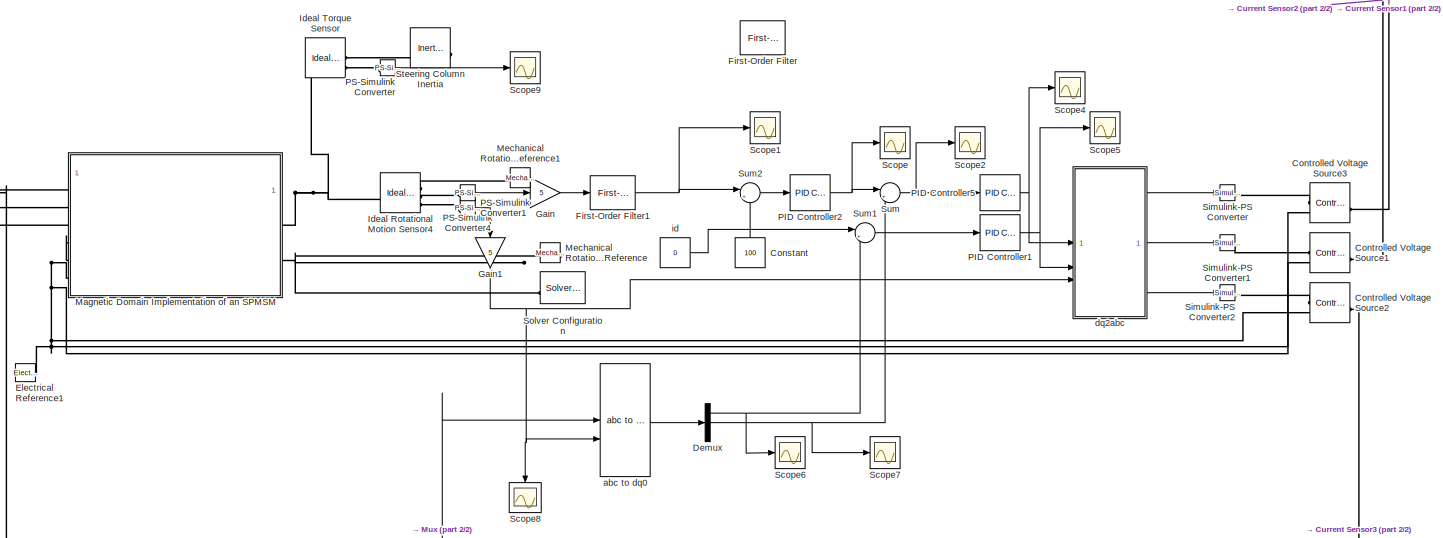
[diagram: root canvas - part 1/2, full width, middle band]
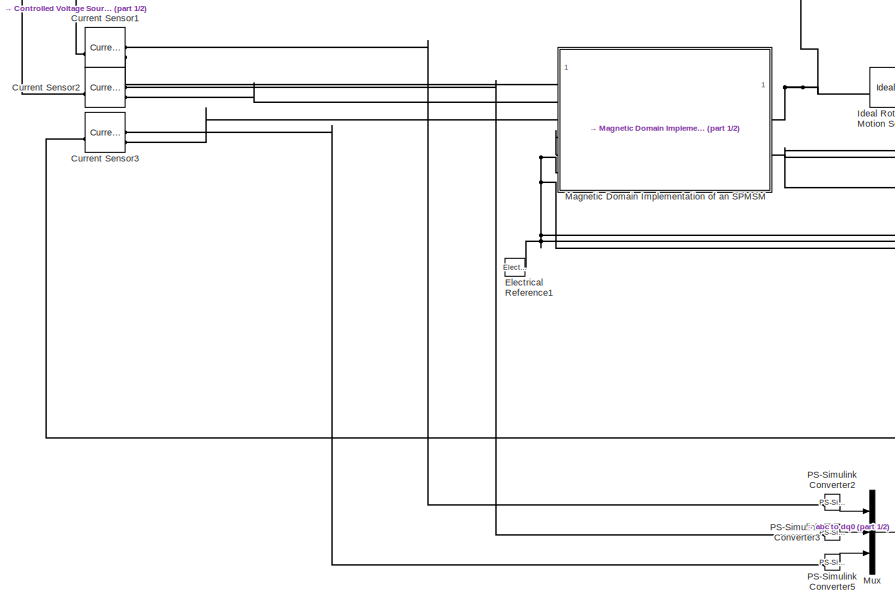
[diagram: root canvas - part 2/2, left side, full height]
MODEL slx_11b85bf1b110
KIND model
CONFIG AbsTol = auto
CONFIG EnableMultiTasking = off
CONFIG FixedStep = auto
CONFIG MaxStep = auto
CONFIG MinStep = auto
CONFIG RelTol = 1e-3
CONFIG SampleTimeConstraint = Unconstrained
CONFIG SolverName = VariableStepAuto
CONFIG StartTime = 0.0
CONFIG StopTime = 20
BLOCK [Constant] Constant
  NameLocation = right
  Value = 100
BLOCK [Reference] Controlled Voltage Source1  REF=fl_lib/Electrical/Electrical Sources/Controlled Voltage
Source
  SourceBlock = fl_lib/Electrical/Electrical Sources/Controlled Voltage\nSource
  SourceType = Controlled Voltage\nSource
BLOCK [Reference] Controlled Voltage Source2  REF=fl_lib/Electrical/Electrical Sources/Controlled Voltage
Source
  SourceBlock = fl_lib/Electrical/Electrical Sources/Controlled Voltage\nSource
  SourceType = Controlled Voltage\nSource
BLOCK [Reference] Controlled Voltage Source3  REF=fl_lib/Electrical/Electrical Sources/Controlled Voltage
Source
  SourceBlock = fl_lib/Electrical/Electrical Sources/Controlled Voltage\nSource
  SourceType = Controlled Voltage\nSource
BLOCK [Reference] Current Sensor1  REF=fl_lib/Electrical/Electrical Sensors/Current Sensor
  SourceBlock = fl_lib/Electrical/Electrical Sensors/Current Sensor
  SourceType = Current Sensor
BLOCK [Reference] Current Sensor2  REF=fl_lib/Electrical/Electrical Sensors/Current Sensor
  SourceBlock = fl_lib/Electrical/Electrical Sensors/Current Sensor
  SourceType = Current Sensor
BLOCK [Reference] Current Sensor3  REF=fl_lib/Electrical/Electrical Sensors/Current Sensor
  SourceBlock = fl_lib/Electrical/Electrical Sensors/Current Sensor
  SourceType = Current Sensor
BLOCK [Demux] Demux
  Outputs = 3
BLOCK [Reference] Electrical Reference1  REF=fl_lib/Electrical/Electrical Elements/Electrical Reference
  SourceBlock = fl_lib/Electrical/Electrical Elements/Electrical Reference
  SourceType = Electrical Reference
BLOCK [Reference] First-Order Filter  REF=spsFirstOrderFilterLib/First-Order
Filter
  LibrarySourceBlock = sps_lib/Control/Filters/First-Order\nFilter
  SourceBlock = spsFirstOrderFilterLib/First-Order\nFilter
  SourceType = First-Order Filter
BLOCK [Reference] First-Order Filter1  REF=spsFirstOrderFilterLib/First-Order
Filter
  LibrarySourceBlock = sps_lib/Control/Filters/First-Order\nFilter
  SourceBlock = spsFirstOrderFilterLib/First-Order\nFilter
  SourceType = First-Order Filter
BLOCK [Gain] Gain
  Gain = 5
BLOCK [Gain] Gain1
  Gain = 5
  NameLocation = left
BLOCK [Reference] Ideal Rotational Motion Sensor4  REF=fl_lib/Mechanical/Mechanical Sensors/Ideal Rotational
Motion Sensor
  SourceBlock = fl_lib/Mechanical/Mechanical Sensors/Ideal Rotational\nMotion Sensor
  SourceType = Ideal Rotational\nMotion Sensor
BLOCK [Reference] Ideal Torque Sensor  REF=fl_lib/Mechanical/Mechanical Sensors/Ideal Torque Sensor
  SourceBlock = fl_lib/Mechanical/Mechanical Sensors/Ideal Torque Sensor
  SourceType = Ideal Torque Sensor
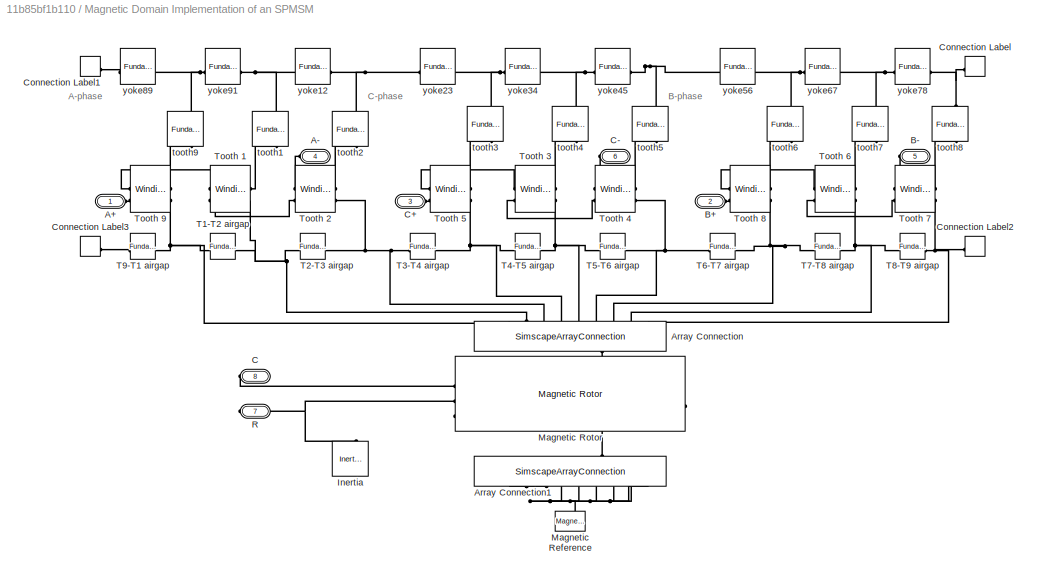
BLOCK [SubSystem] Magnetic Domain Implementation of an SPMSM
BLOCK [PMIOPort] Magnetic Domain Implementation of an SPMSM/A+
  Side = Left
BLOCK [PMIOPort] Magnetic Domain Implementation of an SPMSM/A-
  NameLocation = top
  Port = 4
  Side = Left
BLOCK [SimscapeArrayConnection] Magnetic Domain Implementation of an SPMSM/Array Connection
  Domain = foundation.magnetic.magnetic
  NameLocation = left
  NumScalarElements = 9
BLOCK [SimscapeArrayConnection] Magnetic Domain Implementation of an SPMSM/Array Connection1
  Domain = foundation.magnetic.magnetic
  NameLocation = right
  NumScalarElements = 9
BLOCK [PMIOPort] Magnetic Domain Implementation of an SPMSM/B+
  Port = 2
  Side = Left
BLOCK [PMIOPort] Magnetic Domain Implementation of an SPMSM/B-
  NameLocation = top
  Port = 5
  Side = Left
BLOCK [PMIOPort] Magnetic Domain Implementation of an SPMSM/C
  Port = 8
  Side = Right
BLOCK [PMIOPort] Magnetic Domain Implementation of an SPMSM/C+
  Port = 3
  Side = Left
BLOCK [PMIOPort] Magnetic Domain Implementation of an SPMSM/C-
  NameLocation = top
  Port = 6
  Side = Left
BLOCK [ConnectionLabel] Magnetic Domain Implementation of an SPMSM/Connection Label
  Label = Y
BLOCK [ConnectionLabel] Magnetic Domain Implementation of an SPMSM/Connection Label1
  Label = Y
  NameLocation = top
BLOCK [ConnectionLabel] Magnetic Domain Implementation of an SPMSM/Connection Label2
  Label = SL
BLOCK [ConnectionLabel] Magnetic Domain Implementation of an SPMSM/Connection Label3
  Label = SL
BLOCK [Reference] Magnetic Domain Implementation of an SPMSM/Inertia  REF=fl_lib/Mechanical/Rotational Elements/Inertia
  NameLocation = right
  SourceBlock = fl_lib/Mechanical/Rotational Elements/Inertia
  SourceType = Inertia
BLOCK [Reference] Magnetic Domain Implementation of an SPMSM/Magnetic Reference  REF=fl_lib/Magnetic/Magnetic Elements/Magnetic Reference
  NameLocation = right
  SourceBlock = fl_lib/Magnetic/Magnetic Elements/Magnetic Reference
  SourceType = Magnetic Reference
BLOCK [Reference] Magnetic Domain Implementation of an SPMSM/Magnetic Rotor  REF=ee_lib/Electromechanical/Magnetic Rotor
  SourceBlock = ee_lib/Electromechanical/Magnetic Rotor
  SourceType = Magnetic Rotor
BLOCK [PMIOPort] Magnetic Domain Implementation of an SPMSM/R
  Port = 7
  Side = Right
BLOCK [Reference] Magnetic Domain Implementation of an SPMSM/T1-T2 airgap  REF=fl_lib/Magnetic/Magnetic Elements/Fundamental
Reluctance
  SourceBlock = fl_lib/Magnetic/Magnetic Elements/Fundamental\nReluctance
  SourceType = Fundamental\nReluctance
BLOCK [Reference] Magnetic Domain Implementation of an SPMSM/T2-T3 airgap  REF=fl_lib/Magnetic/Magnetic Elements/Fundamental
Reluctance
  SourceBlock = fl_lib/Magnetic/Magnetic Elements/Fundamental\nReluctance
  SourceType = Fundamental\nReluctance
BLOCK [Reference] Magnetic Domain Implementation of an SPMSM/T3-T4 airgap  REF=fl_lib/Magnetic/Magnetic Elements/Fundamental
Reluctance
  SourceBlock = fl_lib/Magnetic/Magnetic Elements/Fundamental\nReluctance
  SourceType = Fundamental\nReluctance
BLOCK [Reference] Magnetic Domain Implementation of an SPMSM/T4-T5 airgap  REF=fl_lib/Magnetic/Magnetic Elements/Fundamental
Reluctance
  SourceBlock = fl_lib/Magnetic/Magnetic Elements/Fundamental\nReluctance
  SourceType = Fundamental\nReluctance
BLOCK [Reference] Magnetic Domain Implementation of an SPMSM/T5-T6 airgap  REF=fl_lib/Magnetic/Magnetic Elements/Fundamental
Reluctance
  SourceBlock = fl_lib/Magnetic/Magnetic Elements/Fundamental\nReluctance
  SourceType = Fundamental\nReluctance
BLOCK [Reference] Magnetic Domain Implementation of an SPMSM/T6-T7 airgap  REF=fl_lib/Magnetic/Magnetic Elements/Fundamental
Reluctance
  SourceBlock = fl_lib/Magnetic/Magnetic Elements/Fundamental\nReluctance
  SourceType = Fundamental\nReluctance
BLOCK [Reference] Magnetic Domain Implementation of an SPMSM/T7-T8 airgap  REF=fl_lib/Magnetic/Magnetic Elements/Fundamental
Reluctance
  SourceBlock = fl_lib/Magnetic/Magnetic Elements/Fundamental\nReluctance
  SourceType = Fundamental\nReluctance
BLOCK [Reference] Magnetic Domain Implementation of an SPMSM/T8-T9 airgap  REF=fl_lib/Magnetic/Magnetic Elements/Fundamental
Reluctance
  SourceBlock = fl_lib/Magnetic/Magnetic Elements/Fundamental\nReluctance
  SourceType = Fundamental\nReluctance
BLOCK [Reference] Magnetic Domain Implementation of an SPMSM/T9-T1 airgap  REF=fl_lib/Magnetic/Magnetic Elements/Fundamental
Reluctance
  SourceBlock = fl_lib/Magnetic/Magnetic Elements/Fundamental\nReluctance
  SourceType = Fundamental\nReluctance
BLOCK [Reference] Magnetic Domain Implementation of an SPMSM/Tooth 1  REF=ee_lib/Passive/Winding
  SourceBlock = ee_lib/Passive/Winding
  SourceType = Winding
BLOCK [Reference] Magnetic Domain Implementation of an SPMSM/Tooth 2  REF=ee_lib/Passive/Winding
  SourceBlock = ee_lib/Passive/Winding
  SourceType = Winding
BLOCK [Reference] Magnetic Domain Implementation of an SPMSM/Tooth 3  REF=ee_lib/Passive/Winding
  SourceBlock = ee_lib/Passive/Winding
  SourceType = Winding
BLOCK [Reference] Magnetic Domain Implementation of an SPMSM/Tooth 4  REF=ee_lib/Passive/Winding
  SourceBlock = ee_lib/Passive/Winding
  SourceType = Winding
BLOCK [Reference] Magnetic Domain Implementation of an SPMSM/Tooth 5  REF=ee_lib/Passive/Winding
  SourceBlock = ee_lib/Passive/Winding
  SourceType = Winding
BLOCK [Reference] Magnetic Domain Implementation of an SPMSM/Tooth 6  REF=ee_lib/Passive/Winding
  SourceBlock = ee_lib/Passive/Winding
  SourceType = Winding
BLOCK [Reference] Magnetic Domain Implementation of an SPMSM/Tooth 7  REF=ee_lib/Passive/Winding
  SourceBlock = ee_lib/Passive/Winding
  SourceType = Winding
BLOCK [Reference] Magnetic Domain Implementation of an SPMSM/Tooth 8  REF=ee_lib/Passive/Winding
  SourceBlock = ee_lib/Passive/Winding
  SourceType = Winding
BLOCK [Reference] Magnetic Domain Implementation of an SPMSM/Tooth 9  REF=ee_lib/Passive/Winding
  SourceBlock = ee_lib/Passive/Winding
  SourceType = Winding
BLOCK [Reference] Magnetic Domain Implementation of an SPMSM/tooth1  REF=fl_lib/Magnetic/Magnetic Elements/Fundamental
Reluctance
  NameLocation = left
  SourceBlock = fl_lib/Magnetic/Magnetic Elements/Fundamental\nReluctance
  SourceType = Fundamental\nReluctance
BLOCK [Reference] Magnetic Domain Implementation of an SPMSM/tooth2  REF=fl_lib/Magnetic/Magnetic Elements/Fundamental
Reluctance
  NameLocation = left
  SourceBlock = fl_lib/Magnetic/Magnetic Elements/Fundamental\nReluctance
  SourceType = Fundamental\nReluctance
BLOCK [Reference] Magnetic Domain Implementation of an SPMSM/tooth3  REF=fl_lib/Magnetic/Magnetic Elements/Fundamental
Reluctance
  NameLocation = left
  SourceBlock = fl_lib/Magnetic/Magnetic Elements/Fundamental\nReluctance
  SourceType = Fundamental\nReluctance
BLOCK [Reference] Magnetic Domain Implementation of an SPMSM/tooth4  REF=fl_lib/Magnetic/Magnetic Elements/Fundamental
Reluctance
  NameLocation = left
  SourceBlock = fl_lib/Magnetic/Magnetic Elements/Fundamental\nReluctance
  SourceType = Fundamental\nReluctance
BLOCK [Reference] Magnetic Domain Implementation of an SPMSM/tooth5  REF=fl_lib/Magnetic/Magnetic Elements/Fundamental
Reluctance
  NameLocation = left
  SourceBlock = fl_lib/Magnetic/Magnetic Elements/Fundamental\nReluctance
  SourceType = Fundamental\nReluctance
BLOCK [Reference] Magnetic Domain Implementation of an SPMSM/tooth6  REF=fl_lib/Magnetic/Magnetic Elements/Fundamental
Reluctance
  NameLocation = left
  SourceBlock = fl_lib/Magnetic/Magnetic Elements/Fundamental\nReluctance
  SourceType = Fundamental\nReluctance
BLOCK [Reference] Magnetic Domain Implementation of an SPMSM/tooth7  REF=fl_lib/Magnetic/Magnetic Elements/Fundamental
Reluctance
  NameLocation = left
  SourceBlock = fl_lib/Magnetic/Magnetic Elements/Fundamental\nReluctance
  SourceType = Fundamental\nReluctance
BLOCK [Reference] Magnetic Domain Implementation of an SPMSM/tooth8  REF=fl_lib/Magnetic/Magnetic Elements/Fundamental
Reluctance
  NameLocation = left
  SourceBlock = fl_lib/Magnetic/Magnetic Elements/Fundamental\nReluctance
  SourceType = Fundamental\nReluctance
BLOCK [Reference] Magnetic Domain Implementation of an SPMSM/tooth9  REF=fl_lib/Magnetic/Magnetic Elements/Fundamental
Reluctance
  NameLocation = left
  SourceBlock = fl_lib/Magnetic/Magnetic Elements/Fundamental\nReluctance
  SourceType = Fundamental\nReluctance
BLOCK [Reference] Magnetic Domain Implementation of an SPMSM/yoke12  REF=fl_lib/Magnetic/Magnetic Elements/Fundamental
Reluctance
  SourceBlock = fl_lib/Magnetic/Magnetic Elements/Fundamental\nReluctance
  SourceType = Fundamental\nReluctance
BLOCK [Reference] Magnetic Domain Implementation of an SPMSM/yoke23  REF=fl_lib/Magnetic/Magnetic Elements/Fundamental
Reluctance
  SourceBlock = fl_lib/Magnetic/Magnetic Elements/Fundamental\nReluctance
  SourceType = Fundamental\nReluctance
BLOCK [Reference] Magnetic Domain Implementation of an SPMSM/yoke34  REF=fl_lib/Magnetic/Magnetic Elements/Fundamental
Reluctance
  SourceBlock = fl_lib/Magnetic/Magnetic Elements/Fundamental\nReluctance
  SourceType = Fundamental\nReluctance
BLOCK [Reference] Magnetic Domain Implementation of an SPMSM/yoke45  REF=fl_lib/Magnetic/Magnetic Elements/Fundamental
Reluctance
  SourceBlock = fl_lib/Magnetic/Magnetic Elements/Fundamental\nReluctance
  SourceType = Fundamental\nReluctance
BLOCK [Reference] Magnetic Domain Implementation of an SPMSM/yoke56  REF=fl_lib/Magnetic/Magnetic Elements/Fundamental
Reluctance
  SourceBlock = fl_lib/Magnetic/Magnetic Elements/Fundamental\nReluctance
  SourceType = Fundamental\nReluctance
BLOCK [Reference] Magnetic Domain Implementation of an SPMSM/yoke67  REF=fl_lib/Magnetic/Magnetic Elements/Fundamental
Reluctance
  SourceBlock = fl_lib/Magnetic/Magnetic Elements/Fundamental\nReluctance
  SourceType = Fundamental\nReluctance
BLOCK [Reference] Magnetic Domain Implementation of an SPMSM/yoke78  REF=fl_lib/Magnetic/Magnetic Elements/Fundamental
Reluctance
  SourceBlock = fl_lib/Magnetic/Magnetic Elements/Fundamental\nReluctance
  SourceType = Fundamental\nReluctance
BLOCK [Reference] Magnetic Domain Implementation of an SPMSM/yoke89  REF=fl_lib/Magnetic/Magnetic Elements/Fundamental
Reluctance
  SourceBlock = fl_lib/Magnetic/Magnetic Elements/Fundamental\nReluctance
  SourceType = Fundamental\nReluctance
BLOCK [Reference] Magnetic Domain Implementation of an SPMSM/yoke91  REF=fl_lib/Magnetic/Magnetic Elements/Fundamental
Reluctance
  SourceBlock = fl_lib/Magnetic/Magnetic Elements/Fundamental\nReluctance
  SourceType = Fundamental\nReluctance
BLOCK [Reference] Mechanical Rotational Reference  REF=fl_lib/Mechanical/Rotational Elements/Mechanical
Rotational Reference
  NameLocation = right
  SourceBlock = fl_lib/Mechanical/Rotational Elements/Mechanical\nRotational Reference
  SourceType = Mechanical\nRotational Reference
BLOCK [Reference] Mechanical Rotational Reference1  REF=fl_lib/Mechanical/Rotational Elements/Mechanical
Rotational Reference
  NameLocation = top
  SourceBlock = fl_lib/Mechanical/Rotational Elements/Mechanical\nRotational Reference
  SourceType = Mechanical\nRotational Reference
BLOCK [Mux] Mux
  DisplayOption = bar
  Inputs = 3
BLOCK [Reference] PID Controller1  REF=slpidlib/PID Controller
  SourceBlock = slpidlib/PID Controller
  SourceType = PID 1dof
BLOCK [Reference] PID Controller2  REF=slpidlib/PID Controller
  SourceBlock = slpidlib/PID Controller
  SourceType = PID 1dof
BLOCK [Reference] PID Controller5  REF=slpidlib/PID Controller
  SourceBlock = slpidlib/PID Controller
  SourceType = PID 1dof
BLOCK [Reference] PS-Simulink Converter  REF=nesl_utility/PS-Simulink
Converter
  SourceBlock = nesl_utility/PS-Simulink\nConverter
  SourceType = PS-Simulink\nConverter
BLOCK [Reference] PS-Simulink Converter1  REF=nesl_utility/PS-Simulink
Converter
  SourceBlock = nesl_utility/PS-Simulink\nConverter
  SourceType = PS-Simulink\nConverter
BLOCK [Reference] PS-Simulink Converter2  REF=nesl_utility/PS-Simulink
Converter
  SourceBlock = nesl_utility/PS-Simulink\nConverter
  SourceType = PS-Simulink\nConverter
BLOCK [Reference] PS-Simulink Converter3  REF=nesl_utility/PS-Simulink
Converter
  SourceBlock = nesl_utility/PS-Simulink\nConverter
  SourceType = PS-Simulink\nConverter
BLOCK [Reference] PS-Simulink Converter4  REF=nesl_utility/PS-Simulink
Converter
  SourceBlock = nesl_utility/PS-Simulink\nConverter
  SourceType = PS-Simulink\nConverter
BLOCK [Reference] PS-Simulink Converter5  REF=nesl_utility/PS-Simulink
Converter
  SourceBlock = nesl_utility/PS-Simulink\nConverter
  SourceType = PS-Simulink\nConverter
BLOCK [Scope] Scope
  ActiveDisplayYMaximum = 2.2185184248670029
  ActiveDisplayYMinimum = -5.8023563752218168
  Floating = off
  GraphicalSettings = {"AxesScalingProperties":{"AlignXAxis":"Center","AlignYAxis":"Center","AutoScaleXAxisLimits":false,"AxesScaling":"Manual","AxesScalingNumUpdates":10,"ExpandOnly":true,"ScaleAxesLimitsAtStop":false,"XAxisDataRange":100,"YAxisDataRange":80},"DisplayProperties":{"ColorOrder":["auto","auto","auto","auto","auto","auto","auto","auto","auto","auto","auto","auto","auto","auto","auto","auto","auto","auto",...<+2003ch>
  MultipleDisplayCache = [{"MaxYLimMag":5.8023563752218168,"MaxYLimReal":2.2185184248670029,"MinYLimMag":0,"MinYLimReal":-5.8023563752218168,"PlotAsMagnitudePhase":false,"ShowGrid":true,"ShowLegend":false,"Title":"%<SignalLabel>","YLabel":""}]
  NumInputPorts = 1
  ScopeFrameLocation = window
  WasSavedAsWebScope = on
  WindowPosition = [316.000000,373.000000,560.000000,420.000000,]
BLOCK [Scope] Scope1
  ActiveDisplayYMaximum = 120.63294949322639
  ActiveDisplayYMinimum = -13.403661054802928
  DataLoggingVariableName = ScopeData1
  Floating = off
  GraphicalSettings = {"Style":{"BackgroundColor":[0.12941176470588237,0.12941176470588237,0.12941176470588237],"AxesColor":[0.07058823529411765,0.07058823529411765,0.07058823529411765],"LabelsColor":[0.8509803921568627,0.8509803921568627,0.8509803921568627],"PreserveColors":false,"Visible":[true],"LineStyle":["-"],"LineWidth":[1.5],"BarWidth":[0.9],"LineColor":["auto"],"LineFaceAlpha":[1],"LineEdgeAlpha":[1],"Marker":...<+2004ch>
  MultipleDisplayCache = [{"MaxYLimMag":120.63294949322639,"MaxYLimReal":120.63294949322639,"MinYLimMag":0,"MinYLimReal":-13.403661054802928,"PlotAsMagnitudePhase":false,"ShowGrid":true,"ShowLegend":false,"Title":"%<SignalLabel>","YLabel":""}]
  NumInputPorts = 1
  ScopeFrameLocation = window
  WasSavedAsWebScope = on
  WindowPosition = [697.000000,256.000000,560.000000,394.000000,]
BLOCK [Scope] Scope2
  ActiveDisplayYMaximum = 127.58889127165779
  ActiveDisplayYMinimum = -86.659334603066554
  DataLoggingVariableName = ScopeData2
  Floating = off
  GraphicalSettings = {"Style":{"BackgroundColor":[0.12941176470588237,0.12941176470588237,0.12941176470588237],"AxesColor":[0.07058823529411765,0.07058823529411765,0.07058823529411765],"LabelsColor":[0.8509803921568627,0.8509803921568627,0.8509803921568627],"PreserveColors":false,"Visible":[true],"LineStyle":["-"],"LineWidth":[1.5],"BarWidth":[0.9],"LineColor":["auto"],"LineFaceAlpha":[1],"LineEdgeAlpha":[1],"Marker":...<+2297ch>
  MultipleDisplayCache = [{"MaxYLimMag":162.64711223074386,"MaxYLimReal":127.58889127165779,"MinYLimMag":0,"MinYLimReal":-86.659334603066554,"PlotAsMagnitudePhase":false,"ShowGrid":true,"ShowLegend":false,"Title":"%<SignalLabel>","YLabel":""}]
  NumInputPorts = 1
  ScopeFrameLocation = window
  WasSavedAsWebScope = on
  WindowPosition = [445.000000,409.000000,560.000000,420.000000,]
BLOCK [Scope] Scope4
  ActiveDisplayYMaximum = 19.890291636244882
  ActiveDisplayYMinimum = -20.812297134459023
  DataLoggingVariableName = ScopeData4
  Floating = off
  GraphicalSettings = {"Style":{"BackgroundColor":[0.12941176470588237,0.12941176470588237,0.12941176470588237],"AxesColor":[0.07058823529411765,0.07058823529411765,0.07058823529411765],"LabelsColor":[0.8509803921568627,0.8509803921568627,0.8509803921568627],"PreserveColors":false,"Visible":[true],"LineStyle":["-"],"LineWidth":[1.5],"BarWidth":[0.9],"LineColor":["auto"],"LineFaceAlpha":[1],"LineEdgeAlpha":[1],"Marker":...<+2309ch>
  MultipleDisplayCache = [{"MaxYLimMag":204.19313527772593,"MaxYLimReal":19.890291636244882,"MinYLimMag":0,"MinYLimReal":-20.812297134459023,"PlotAsMagnitudePhase":false,"ShowGrid":true,"ShowLegend":false,"Title":"%<SignalLabel>","YLabel":""}]
  NumInputPorts = 1
  ScopeFrameLocation = window
  WasSavedAsWebScope = on
  WindowPosition = [808.000000,372.000000,560.000000,420.000000,]
BLOCK [Scope] Scope5
  ActiveDisplayYMaximum = 76.354132200573616
  ActiveDisplayYMinimum = 24.495382360291835
  DataLoggingVariableName = ScopeData5
  Floating = off
  GraphicalSettings = {"Style":{"BackgroundColor":[0.12941176470588237,0.12941176470588237,0.12941176470588237],"AxesColor":[0.07058823529411765,0.07058823529411765,0.07058823529411765],"LabelsColor":[0.8509803921568627,0.8509803921568627,0.8509803921568627],"PreserveColors":false,"Visible":[true],"LineStyle":["-"],"LineWidth":[1.5],"BarWidth":[0.9],"LineColor":["auto"],"LineFaceAlpha":[1],"LineEdgeAlpha":[1],"Marker":...<+2302ch>
  MultipleDisplayCache = [{"MaxYLimMag":280.00883922979477,"MaxYLimReal":76.354132200573616,"MinYLimMag":0,"MinYLimReal":24.495382360291835,"PlotAsMagnitudePhase":false,"ShowGrid":true,"ShowLegend":false,"Title":"%<SignalLabel>","YLabel":""}]
  NumInputPorts = 1
  ScopeFrameLocation = window
  WasSavedAsWebScope = on
  WindowPosition = [774.000000,275.000000,560.000000,420.000000,]
BLOCK [Scope] Scope6
  ActiveDisplayYMaximum = 3314.8973874888006
  ActiveDisplayYMinimum = -3358.5009916772633
  DataLoggingVariableName = ScopeData6
  Floating = off
  GraphicalSettings = {"AxesScalingProperties":{"AlignXAxis":"Center","AlignYAxis":"Center","AutoScaleXAxisLimits":false,"AxesScaling":"Manual","AxesScalingNumUpdates":10,"ExpandOnly":true,"ScaleAxesLimitsAtStop":false,"XAxisDataRange":100,"YAxisDataRange":80},"DisplayProperties":{"ColorOrder":["auto","auto","auto","auto","auto","auto","auto","auto","auto","auto","auto","auto","auto","auto","auto","auto","auto","auto",...<+2000ch>
  MultipleDisplayCache = [{"MaxYLimMag":3358.5009916772633,"MaxYLimReal":3314.8973874888006,"MinYLimMag":0,"MinYLimReal":-3358.5009916772633,"PlotAsMagnitudePhase":false,"ShowGrid":true,"ShowLegend":false,"Title":"%<SignalLabel>","YLabel":""}]
  NumInputPorts = 1
  ScopeFrameLocation = window
  WasSavedAsWebScope = on
  WindowPosition = [638.000000,329.000000,560.000000,420.000000,]
BLOCK [Scope] Scope7
  ActiveDisplayYMaximum = 1.0409285736394622
  ActiveDisplayYMinimum = -2.8426588150958878
  DataLoggingVariableName = ScopeData7
  Floating = off
  GraphicalSettings = {"Style":{"BackgroundColor":[0.12941176470588237,0.12941176470588237,0.12941176470588237],"AxesColor":[0.07058823529411765,0.07058823529411765,0.07058823529411765],"LabelsColor":[0.8509803921568627,0.8509803921568627,0.8509803921568627],"PreserveColors":false,"Visible":[true],"LineStyle":["-"],"LineWidth":[1.5],"BarWidth":[0.9],"LineColor":["auto"],"LineFaceAlpha":[1],"LineEdgeAlpha":[1],"Marker":...<+1988ch>
  MultipleDisplayCache = [{"MaxYLimMag":2.8426588150958878,"MaxYLimReal":1.0409285736394622,"MinYLimMag":0,"MinYLimReal":-2.8426588150958878,"PlotAsMagnitudePhase":false,"ShowGrid":true,"ShowLegend":false,"Title":"%<SignalLabel>","YLabel":""}]
  NumInputPorts = 1
  ScopeFrameLocation = window
  WasSavedAsWebScope = on
  WindowPosition = [638.000000,329.000000,560.000000,420.000000,]
BLOCK [Scope] Scope8
  ActiveDisplayYMaximum = 10.664194284729955
  ActiveDisplayYMinimum = 10.636225564991161
  DataLoggingVariableName = ScopeData8
  Floating = off
  GraphicalSettings = {"AxesScalingProperties":{"AlignXAxis":"Center","AlignYAxis":"Center","AutoScaleXAxisLimits":false,"AxesScaling":"Manual","AxesScalingNumUpdates":10,"ExpandOnly":true,"ScaleAxesLimitsAtStop":false,"XAxisDataRange":100,"YAxisDataRange":80},"DisplayProperties":{"ColorOrder":["auto","auto","auto","auto","auto","auto","auto","auto","auto","auto","auto","auto","auto","auto","auto","auto","auto","auto",...<+1997ch>
  MultipleDisplayCache = [{"MaxYLimMag":28.919923389358019,"MaxYLimReal":10.664194284729955,"MinYLimMag":0,"MinYLimReal":10.636225564991161,"PlotAsMagnitudePhase":false,"ShowGrid":true,"ShowLegend":false,"Title":"%<SignalLabel>","YLabel":""}]
  NameLocation = left
  NumInputPorts = 1
  ScopeFrameLocation = window
  WasSavedAsWebScope = on
  WindowPosition = [638.000000,329.000000,560.000000,420.000000,]
BLOCK [Scope] Scope9
  ActiveDisplayYMaximum = 2.6879452789265237
  ActiveDisplayYMinimum = -2.6472347032555867
  DataLoggingVariableName = ScopeData9
  Floating = off
  GraphicalSettings = {"Style":{"BackgroundColor":[0.12941176470588237,0.12941176470588237,0.12941176470588237],"AxesColor":[0.07058823529411765,0.07058823529411765,0.07058823529411765],"LabelsColor":[0.8509803921568627,0.8509803921568627,0.8509803921568627],"PreserveColors":false,"Visible":[true],"LineStyle":["-"],"LineWidth":[1.5],"BarWidth":[0.9],"LineColor":["auto"],"LineFaceAlpha":[1],"LineEdgeAlpha":[1],"Marker":...<+2004ch>
  MultipleDisplayCache = [{"MaxYLimMag":2.6879452789265237,"MaxYLimReal":2.6879452789265237,"MinYLimMag":0,"MinYLimReal":-2.6472347032555867,"PlotAsMagnitudePhase":false,"ShowGrid":true,"ShowLegend":false,"Title":"%<SignalLabel>","YLabel":""}]
  NumInputPorts = 1
  ScopeFrameLocation = window
  WasSavedAsWebScope = on
  WindowPosition = [654.000000,262.000000,560.000000,394.000000,]
BLOCK [Reference] Simulink-PS Converter  REF=nesl_utility/Simulink-PS
Converter
  SourceBlock = nesl_utility/Simulink-PS\nConverter
  SourceType = Simulink-PS\nConverter
BLOCK [Reference] Simulink-PS Converter1  REF=nesl_utility/Simulink-PS
Converter
  SourceBlock = nesl_utility/Simulink-PS\nConverter
  SourceType = Simulink-PS\nConverter
BLOCK [Reference] Simulink-PS Converter2  REF=nesl_utility/Simulink-PS
Converter
  SourceBlock = nesl_utility/Simulink-PS\nConverter
  SourceType = Simulink-PS\nConverter
BLOCK [Reference] Solver Configuration  REF=nesl_utility/Solver
Configuration
  SourceBlock = nesl_utility/Solver\nConfiguration
  SourceType = Solver\nConfiguration
BLOCK [Reference] Steering Column Inertia  REF=fl_lib/Mechanical/Rotational Elements/Inertia
  SourceBlock = fl_lib/Mechanical/Rotational Elements/Inertia
  SourceType = Inertia
BLOCK [Sum] Sum
  Inputs = |+-
BLOCK [Sum] Sum1
  Inputs = |+-
BLOCK [Sum] Sum2
  Inputs = |+-
BLOCK [Reference] abc to dq0  REF=spsabctodq0Lib/abc to dq0
  LibrarySourceBlock = sps_lib/Control/abc to dq0
  SourceBlock = spsabctodq0Lib/abc to dq0
  SourceType = abc to dq0 Transformation
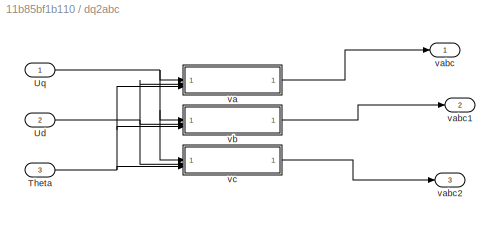
BLOCK [SubSystem] dq2abc
BLOCK [Inport] dq2abc/Theta
  Port = 3
BLOCK [Inport] dq2abc/Ud
  Port = 2
BLOCK [Inport] dq2abc/Uq
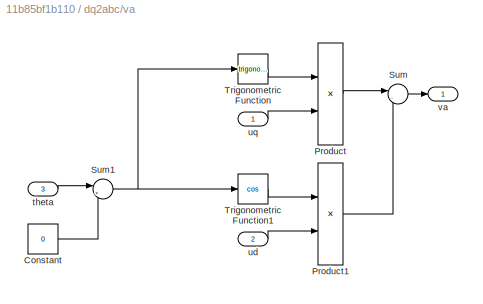
BLOCK [SubSystem] dq2abc/va
BLOCK [Constant] dq2abc/va/Constant
  Value = 0
BLOCK [Product] dq2abc/va/Product
BLOCK [Product] dq2abc/va/Product1
BLOCK [Sum] dq2abc/va/Sum
  Inputs = |-+
BLOCK [Sum] dq2abc/va/Sum1
  Inputs = |++
BLOCK [Trigonometry] dq2abc/va/Trigonometric Function
BLOCK [Trigonometry] dq2abc/va/Trigonometric Function1
  Operator = cos
BLOCK [Inport] dq2abc/va/theta
  NameLocation = top
  Port = 3
BLOCK [Inport] dq2abc/va/ud
  Port = 2
BLOCK [Inport] dq2abc/va/uq
BLOCK [Outport] dq2abc/va/va
  VectorParamsAs1DForOutWhenUnconnected = off
BLOCK [Outport] dq2abc/vabc
  VectorParamsAs1DForOutWhenUnconnected = off
BLOCK [Outport] dq2abc/vabc1
  Port = 2
  VectorParamsAs1DForOutWhenUnconnected = off
BLOCK [Outport] dq2abc/vabc2
  Port = 3
  VectorParamsAs1DForOutWhenUnconnected = off
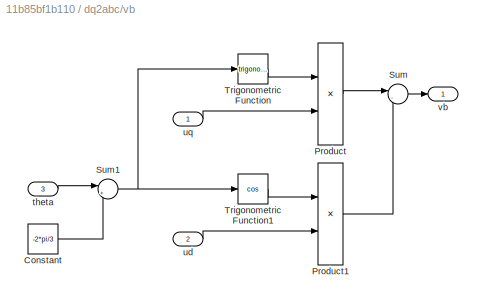
BLOCK [SubSystem] dq2abc/vb
BLOCK [Constant] dq2abc/vb/Constant
  Value = -2*pi/3
BLOCK [Product] dq2abc/vb/Product
BLOCK [Product] dq2abc/vb/Product1
BLOCK [Sum] dq2abc/vb/Sum
  Inputs = |-+
BLOCK [Sum] dq2abc/vb/Sum1
  Inputs = |++
BLOCK [Trigonometry] dq2abc/vb/Trigonometric Function
BLOCK [Trigonometry] dq2abc/vb/Trigonometric Function1
  Operator = cos
BLOCK [Inport] dq2abc/vb/theta
  NameLocation = top
  Port = 3
BLOCK [Inport] dq2abc/vb/ud
  Port = 2
BLOCK [Inport] dq2abc/vb/uq
BLOCK [Outport] dq2abc/vb/vb
  VectorParamsAs1DForOutWhenUnconnected = off
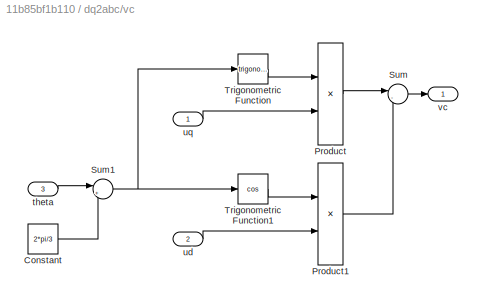
BLOCK [SubSystem] dq2abc/vc
BLOCK [Constant] dq2abc/vc/Constant
  Value = 2*pi/3
BLOCK [Product] dq2abc/vc/Product
BLOCK [Product] dq2abc/vc/Product1
BLOCK [Sum] dq2abc/vc/Sum
  Inputs = |-+
BLOCK [Sum] dq2abc/vc/Sum1
  Inputs = |++
BLOCK [Trigonometry] dq2abc/vc/Trigonometric Function
BLOCK [Trigonometry] dq2abc/vc/Trigonometric Function1
  Operator = cos
BLOCK [Inport] dq2abc/vc/theta
  NameLocation = top
  Port = 3
BLOCK [Inport] dq2abc/vc/ud
  Port = 2
BLOCK [Inport] dq2abc/vc/uq
BLOCK [Outport] dq2abc/vc/vc
  VectorParamsAs1DForOutWhenUnconnected = off
BLOCK [Constant] id
  Value = 0
ANNOTATION Magnetic Domain Implementation of an SPMSM: A-phase
ANNOTATION Magnetic Domain Implementation of an SPMSM: B-phase
ANNOTATION Magnetic Domain Implementation of an SPMSM: C-phase
LINE Constant:1 -> Sum2:2
NET Demux:1 -> Scope6:1, Sum1:2
NET Demux:2 -> Scope7:1, Sum:2
NET First-Order Filter1:1 -> Scope1:1, Sum2:1
NET Gain1:1 -> Scope8:1, abc to dq0:2, dq2abc:3
LINE Gain:1 -> First-Order Filter1:1
LINE Mux:1 -> abc to dq0:1
NET PID Controller1:1 -> Scope5:1, dq2abc:2
NET PID Controller2:1 -> Scope:1, Sum:1
NET PID Controller5:1 -> Scope4:1, dq2abc:1
LINE PS-Simulink Converter1:1 -> Gain1:1
LINE PS-Simulink Converter2:1 -> Mux:1
LINE PS-Simulink Converter3:1 -> Mux:2
LINE PS-Simulink Converter4:1 -> Gain:1
LINE PS-Simulink Converter5:1 -> Mux:3
LINE PS-Simulink Converter:1 -> Scope9:1
LINE Sum1:1 -> PID Controller1:1
LINE Sum2:1 -> PID Controller2:1
NET Sum:1 -> PID Controller5:1, Scope2:1
LINE abc to dq0:1 -> Demux:1
NET dq2abc/Theta:1 -> dq2abc/va:3, dq2abc/vb:3, dq2abc/vc:3
NET dq2abc/Ud:1 -> dq2abc/va:2, dq2abc/vb:2, dq2abc/vc:2
NET dq2abc/Uq:1 -> dq2abc/va:1, dq2abc/vb:1, dq2abc/vc:1
LINE dq2abc/va/Constant:1 -> dq2abc/va/Sum1:2
LINE dq2abc/va/Product1:1 -> dq2abc/va/Sum:2
LINE dq2abc/va/Product:1 -> dq2abc/va/Sum:1
NET dq2abc/va/Sum1:1 -> dq2abc/va/Trigonometric Function1:1, dq2abc/va/Trigonometric Function:1
LINE dq2abc/va/Sum:1 -> dq2abc/va/va:1
LINE dq2abc/va/Trigonometric Function1:1 -> dq2abc/va/Product1:1
LINE dq2abc/va/Trigonometric Function:1 -> dq2abc/va/Product:1
LINE dq2abc/va/theta:1 -> dq2abc/va/Sum1:1
LINE dq2abc/va/ud:1 -> dq2abc/va/Product1:2
LINE dq2abc/va/uq:1 -> dq2abc/va/Product:2
LINE dq2abc/va:1 -> dq2abc/vabc:1
LINE dq2abc/vb/Constant:1 -> dq2abc/vb/Sum1:2
LINE dq2abc/vb/Product1:1 -> dq2abc/vb/Sum:2
LINE dq2abc/vb/Product:1 -> dq2abc/vb/Sum:1
NET dq2abc/vb/Sum1:1 -> dq2abc/vb/Trigonometric Function1:1, dq2abc/vb/Trigonometric Function:1
LINE dq2abc/vb/Sum:1 -> dq2abc/vb/vb:1
LINE dq2abc/vb/Trigonometric Function1:1 -> dq2abc/vb/Product1:1
LINE dq2abc/vb/Trigonometric Function:1 -> dq2abc/vb/Product:1
LINE dq2abc/vb/theta:1 -> dq2abc/vb/Sum1:1
LINE dq2abc/vb/ud:1 -> dq2abc/vb/Product1:2
LINE dq2abc/vb/uq:1 -> dq2abc/vb/Product:2
LINE dq2abc/vb:1 -> dq2abc/vabc1:1
LINE dq2abc/vc/Constant:1 -> dq2abc/vc/Sum1:2
LINE dq2abc/vc/Product1:1 -> dq2abc/vc/Sum:2
LINE dq2abc/vc/Product:1 -> dq2abc/vc/Sum:1
NET dq2abc/vc/Sum1:1 -> dq2abc/vc/Trigonometric Function1:1, dq2abc/vc/Trigonometric Function:1
LINE dq2abc/vc/Sum:1 -> dq2abc/vc/vc:1
LINE dq2abc/vc/Trigonometric Function1:1 -> dq2abc/vc/Product1:1
LINE dq2abc/vc/Trigonometric Function:1 -> dq2abc/vc/Product:1
LINE dq2abc/vc/theta:1 -> dq2abc/vc/Sum1:1
LINE dq2abc/vc/ud:1 -> dq2abc/vc/Product1:2
LINE dq2abc/vc/uq:1 -> dq2abc/vc/Product:2
LINE dq2abc/vc:1 -> dq2abc/vabc2:1
LINE dq2abc:1 -> Simulink-PS Converter:1
LINE dq2abc:2 -> Simulink-PS Converter1:1
LINE dq2abc:3 -> Simulink-PS Converter2:1
LINE id:1 -> Sum1:1
PLINE Controlled Voltage Source1:LConn1 -- Current Sensor2:LConn1
PLINE Controlled Voltage Source1:RConn1 -- Simulink-PS Converter1:RConn1
PNET net1: Controlled Voltage Source1:RConn2 -- Controlled Voltage Source2:RConn2 -- Controlled Voltage Source3:RConn2 -- Electrical Reference1:LConn1 -- Magnetic Domain Implementation of an SPMSM:LConn4 -- Magnetic Domain Implementation of an SPMSM:LConn5 -- Magnetic Domain Implementation of an SPMSM:LConn6
PLINE Controlled Voltage Source2:LConn1 -- Current Sensor3:LConn1
PLINE Controlled Voltage Source2:RConn1 -- Simulink-PS Converter2:RConn1
PLINE Controlled Voltage Source3:LConn1 -- Current Sensor1:LConn1
PLINE Controlled Voltage Source3:RConn1 -- Simulink-PS Converter:RConn1
PLINE Current Sensor1:RConn1 -- PS-Simulink Converter2:LConn1
PLINE Current Sensor1:RConn2 -- Magnetic Domain Implementation of an SPMSM:LConn1
PLINE Current Sensor2:RConn1 -- PS-Simulink Converter3:LConn1
PLINE Current Sensor2:RConn2 -- Magnetic Domain Implementation of an SPMSM:LConn2
PLINE Current Sensor3:RConn1 -- PS-Simulink Converter5:LConn1
PLINE Current Sensor3:RConn2 -- Magnetic Domain Implementation of an SPMSM:LConn3
PNET net2: Ideal Rotational Motion Sensor4:LConn1 -- Ideal Torque Sensor:LConn1 -- Magnetic Domain Implementation of an SPMSM:RConn1
PLINE Ideal Rotational Motion Sensor4:RConn1 -- Mechanical Rotational Reference1:LConn1
PLINE Ideal Rotational Motion Sensor4:RConn2 -- PS-Simulink Converter4:LConn1
PLINE Ideal Rotational Motion Sensor4:RConn3 -- PS-Simulink Converter1:LConn1
PLINE Ideal Torque Sensor:RConn1 -- Steering Column Inertia:LConn1
PLINE Ideal Torque Sensor:RConn2 -- PS-Simulink Converter:LConn1
PLINE Magnetic Domain Implementation of an SPMSM/A+:RConn1 -- Magnetic Domain Implementation of an SPMSM/Tooth 9:LConn2
PLINE Magnetic Domain Implementation of an SPMSM/A-:RConn1 -- Magnetic Domain Implementation of an SPMSM/Tooth 2:LConn1
PNET net3: Magnetic Domain Implementation of an SPMSM/Array Connection1:LConn1 -- Magnetic Domain Implementation of an SPMSM/Array Connection1:LConn2 -- Magnetic Domain Implementation of an SPMSM/Array Connection1:LConn3 -- Magnetic Domain Implementation of an SPMSM/Array Connection1:LConn4 -- Magnetic Domain Implementation of an SPMSM/Array Connection1:LConn5 -- Magnetic Domain Implementation of an SPMSM/Array Connection1:LConn6 -- Magnetic Domain Implementation of an SPMSM/Array Connection1:LConn7 -- Magnetic Domain Implementation of an SPMSM/Array Connection1:LConn8 -- Magnetic Domain Implementation of an SPMSM/Array Connection1:LConn9 -- Magnetic Domain Implementation of an SPMSM/Magnetic Reference:LConn1
PLINE Magnetic Domain Implementation of an SPMSM/Array Connection1:RConn1 -- Magnetic Domain Implementation of an SPMSM/Magnetic Rotor:RConn1
PNET net4: Magnetic Domain Implementation of an SPMSM/Array Connection:LConn1 -- Magnetic Domain Implementation of an SPMSM/T1-T2 airgap:LConn1 -- Magnetic Domain Implementation of an SPMSM/T9-T1 airgap:RConn1 -- Magnetic Domain Implementation of an SPMSM/Tooth 9:RConn2
PNET net5: Magnetic Domain Implementation of an SPMSM/Array Connection:LConn2 -- Magnetic Domain Implementation of an SPMSM/T1-T2 airgap:RConn1 -- Magnetic Domain Implementation of an SPMSM/T2-T3 airgap:LConn1 -- Magnetic Domain Implementation of an SPMSM/Tooth 1:RConn2
PNET net6: Magnetic Domain Implementation of an SPMSM/Array Connection:LConn3 -- Magnetic Domain Implementation of an SPMSM/T2-T3 airgap:RConn1 -- Magnetic Domain Implementation of an SPMSM/T3-T4 airgap:LConn1 -- Magnetic Domain Implementation of an SPMSM/Tooth 2:RConn2
PNET net7: Magnetic Domain Implementation of an SPMSM/Array Connection:LConn4 -- Magnetic Domain Implementation of an SPMSM/T3-T4 airgap:RConn1 -- Magnetic Domain Implementation of an SPMSM/T4-T5 airgap:LConn1 -- Magnetic Domain Implementation of an SPMSM/Tooth 5:RConn2
PNET net8: Magnetic Domain Implementation of an SPMSM/Array Connection:LConn5 -- Magnetic Domain Implementation of an SPMSM/T4-T5 airgap:RConn1 -- Magnetic Domain Implementation of an SPMSM/T5-T6 airgap:LConn1 -- Magnetic Domain Implementation of an SPMSM/Tooth 3:RConn2
PNET net9: Magnetic Domain Implementation of an SPMSM/Array Connection:LConn6 -- Magnetic Domain Implementation of an SPMSM/T5-T6 airgap:RConn1 -- Magnetic Domain Implementation of an SPMSM/T6-T7 airgap:LConn1 -- Magnetic Domain Implementation of an SPMSM/Tooth 4:RConn2
PNET net10: Magnetic Domain Implementation of an SPMSM/Array Connection:LConn7 -- Magnetic Domain Implementation of an SPMSM/T6-T7 airgap:RConn1 -- Magnetic Domain Implementation of an SPMSM/T7-T8 airgap:LConn1 -- Magnetic Domain Implementation of an SPMSM/Tooth 8:RConn2
PNET net11: Magnetic Domain Implementation of an SPMSM/Array Connection:LConn8 -- Magnetic Domain Implementation of an SPMSM/T7-T8 airgap:RConn1 -- Magnetic Domain Implementation of an SPMSM/T8-T9 airgap:LConn1 -- Magnetic Domain Implementation of an SPMSM/Tooth 6:RConn2
PNET net12: Magnetic Domain Implementation of an SPMSM/Array Connection:LConn9 -- Magnetic Domain Implementation of an SPMSM/Connection Label2:LConn1 -- Magnetic Domain Implementation of an SPMSM/T8-T9 airgap:RConn1 -- Magnetic Domain Implementation of an SPMSM/Tooth 7:RConn2
PLINE Magnetic Domain Implementation of an SPMSM/Array Connection:RConn1 -- Magnetic Domain Implementation of an SPMSM/Magnetic Rotor:LConn3
PLINE Magnetic Domain Implementation of an SPMSM/B+:RConn1 -- Magnetic Domain Implementation of an SPMSM/Tooth 8:LConn2
PLINE Magnetic Domain Implementation of an SPMSM/B-:RConn1 -- Magnetic Domain Implementation of an SPMSM/Tooth 7:LConn1
PLINE Magnetic Domain Implementation of an SPMSM/C+:RConn1 -- Magnetic Domain Implementation of an SPMSM/Tooth 5:LConn2
PLINE Magnetic Domain Implementation of an SPMSM/C-:RConn1 -- Magnetic Domain Implementation of an SPMSM/Tooth 4:LConn1
PLINE Magnetic Domain Implementation of an SPMSM/C:RConn1 -- Magnetic Domain Implementation of an SPMSM/Magnetic Rotor:LConn1
PLINE Magnetic Domain Implementation of an SPMSM/Connection Label1:LConn1 -- Magnetic Domain Implementation of an SPMSM/yoke89:LConn1
PLINE Magnetic Domain Implementation of an SPMSM/Connection Label3:LConn1 -- Magnetic Domain Implementation of an SPMSM/T9-T1 airgap:LConn1
PNET net13: Magnetic Domain Implementation of an SPMSM/Connection Label:LConn1 -- Magnetic Domain Implementation of an SPMSM/tooth8:LConn1 -- Magnetic Domain Implementation of an SPMSM/yoke78:RConn1
PNET net14: Magnetic Domain Implementation of an SPMSM/Inertia:LConn1 -- Magnetic Domain Implementation of an SPMSM/Magnetic Rotor:LConn2 -- Magnetic Domain Implementation of an SPMSM/R:RConn1
PLINE Magnetic Domain Implementation of an SPMSM/Tooth 1:LConn1 -- Magnetic Domain Implementation of an SPMSM/Tooth 9:LConn1
PLINE Magnetic Domain Implementation of an SPMSM/Tooth 1:LConn2 -- Magnetic Domain Implementation of an SPMSM/Tooth 2:LConn2
PLINE Magnetic Domain Implementation of an SPMSM/Tooth 1:RConn1 -- Magnetic Domain Implementation of an SPMSM/tooth1:RConn1
PLINE Magnetic Domain Implementation of an SPMSM/Tooth 2:RConn1 -- Magnetic Domain Implementation of an SPMSM/tooth2:RConn1
PLINE Magnetic Domain Implementation of an SPMSM/Tooth 3:LConn1 -- Magnetic Domain Implementation of an SPMSM/Tooth 5:LConn1
PLINE Magnetic Domain Implementation of an SPMSM/Tooth 3:LConn2 -- Magnetic Domain Implementation of an SPMSM/Tooth 4:LConn2
PLINE Magnetic Domain Implementation of an SPMSM/Tooth 3:RConn1 -- Magnetic Domain Implementation of an SPMSM/tooth4:RConn1
PLINE Magnetic Domain Implementation of an SPMSM/Tooth 4:RConn1 -- Magnetic Domain Implementation of an SPMSM/tooth5:RConn1
PLINE Magnetic Domain Implementation of an SPMSM/Tooth 5:RConn1 -- Magnetic Domain Implementation of an SPMSM/tooth3:RConn1
PLINE Magnetic Domain Implementation of an SPMSM/Tooth 6:LConn1 -- Magnetic Domain Implementation of an SPMSM/Tooth 8:LConn1
PLINE Magnetic Domain Implementation of an SPMSM/Tooth 6:LConn2 -- Magnetic Domain Implementation of an SPMSM/Tooth 7:LConn2
PLINE Magnetic Domain Implementation of an SPMSM/Tooth 6:RConn1 -- Magnetic Domain Implementation of an SPMSM/tooth7:RConn1
PLINE Magnetic Domain Implementation of an SPMSM/Tooth 7:RConn1 -- Magnetic Domain Implementation of an SPMSM/tooth8:RConn1
PLINE Magnetic Domain Implementation of an SPMSM/Tooth 8:RConn1 -- Magnetic Domain Implementation of an SPMSM/tooth6:RConn1
PLINE Magnetic Domain Implementation of an SPMSM/Tooth 9:RConn1 -- Magnetic Domain Implementation of an SPMSM/tooth9:RConn1
PNET net15: Magnetic Domain Implementation of an SPMSM/tooth1:LConn1 -- Magnetic Domain Implementation of an SPMSM/yoke12:LConn1 -- Magnetic Domain Implementation of an SPMSM/yoke91:RConn1
PNET net16: Magnetic Domain Implementation of an SPMSM/tooth2:LConn1 -- Magnetic Domain Implementation of an SPMSM/yoke12:RConn1 -- Magnetic Domain Implementation of an SPMSM/yoke23:LConn1
PNET net17: Magnetic Domain Implementation of an SPMSM/tooth3:LConn1 -- Magnetic Domain Implementation of an SPMSM/yoke23:RConn1 -- Magnetic Domain Implementation of an SPMSM/yoke34:LConn1
PNET net18: Magnetic Domain Implementation of an SPMSM/tooth4:LConn1 -- Magnetic Domain Implementation of an SPMSM/yoke34:RConn1 -- Magnetic Domain Implementation of an SPMSM/yoke45:LConn1
PNET net19: Magnetic Domain Implementation of an SPMSM/tooth5:LConn1 -- Magnetic Domain Implementation of an SPMSM/yoke45:RConn1 -- Magnetic Domain Implementation of an SPMSM/yoke56:LConn1
PNET net20: Magnetic Domain Implementation of an SPMSM/tooth6:LConn1 -- Magnetic Domain Implementation of an SPMSM/yoke56:RConn1 -- Magnetic Domain Implementation of an SPMSM/yoke67:LConn1
PNET net21: Magnetic Domain Implementation of an SPMSM/tooth7:LConn1 -- Magnetic Domain Implementation of an SPMSM/yoke67:RConn1 -- Magnetic Domain Implementation of an SPMSM/yoke78:LConn1
PNET net22: Magnetic Domain Implementation of an SPMSM/tooth9:LConn1 -- Magnetic Domain Implementation of an SPMSM/yoke89:RConn1 -- Magnetic Domain Implementation of an SPMSM/yoke91:LConn1
PNET net23: Magnetic Domain Implementation of an SPMSM:RConn2 -- Mechanical Rotational Reference:LConn1 -- Solver Configuration:RConn1
note: NET lines group one-source signal fan-out (src -> all destinations, sorted); 1:1 wires keep LINE; PNET lines group multi-terminal physical nets as a canonical sorted terminal list (undirected conserving connections); 2-terminal nets keep the pairwise PLINE form
